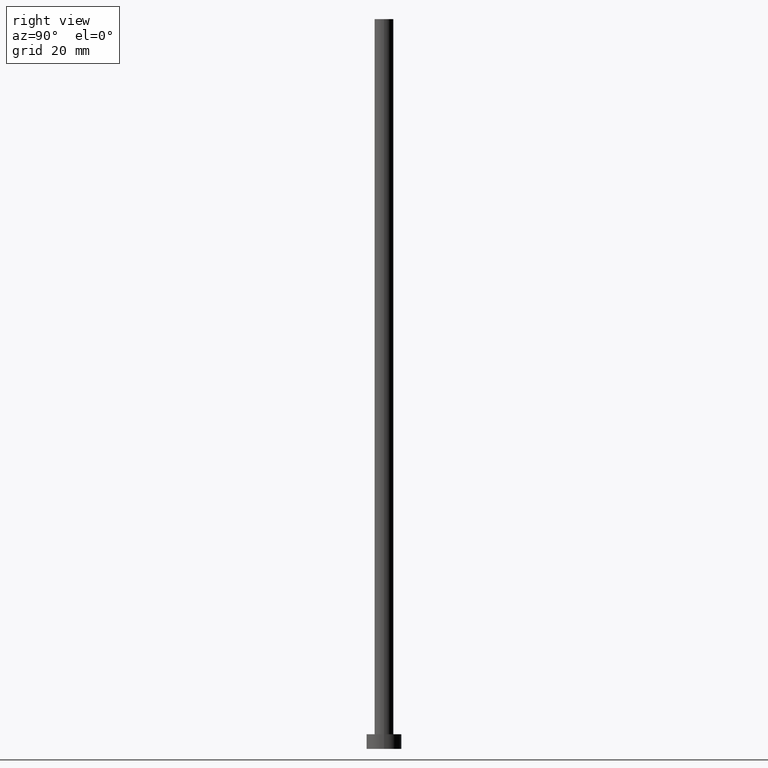
[diagram: clean part render]
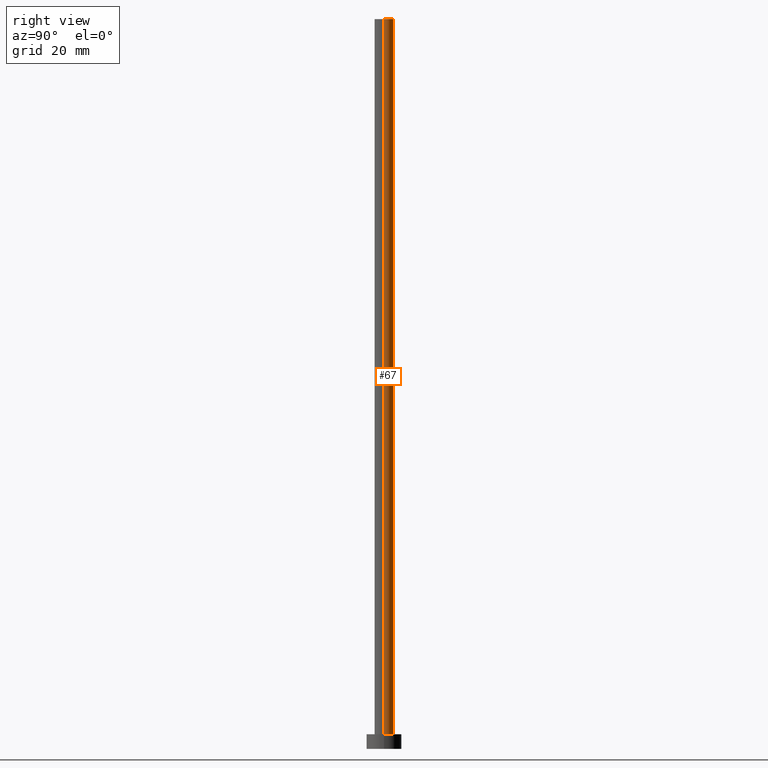
[diagram: same view with one face highlighted and labeled with its STEP entity id]
A machine part, right view. The second image highlights one B-rep face of the part: STEP entity #67.
In plain terms, the highlighted cylindrical surface (edge-blend (fillet) strip) has radius 3.25 mm, axis along (-0, -0, -1).
Its self-contained STEP definition (entity closure, byte-faithful):
#4 = DIRECTION ( 'NONE',  ( 1.000000000000000000, 0.000000000000000000, 0.000000000000000000 ) ) ;
#6 = DIRECTION ( 'NONE',  ( -1.000000000000000000, 0.000000000000000000, 0.000000000000000000 ) ) ;
#8 = DIRECTION ( 'NONE',  ( -0.000000000000000000, -0.000000000000000000, -1.000000000000000000 ) ) ;
#12 = VERTEX_POINT ( 'NONE', #100 ) ;
#31 = CARTESIAN_POINT ( 'NONE',  ( -3.250000000000000444, 0.000000000000000000, 250.0000000000000000 ) ) ;
#37 = CIRCLE ( 'NONE', #183, 3.250000000000000444 ) ;
#41 = ORIENTED_EDGE ( 'NONE', *, *, #156, .T. ) ;
#49 = AXIS2_PLACEMENT_3D ( 'NONE', #127, #64, #6 ) ;
#50 = VERTEX_POINT ( 'NONE', #55 ) ;
#55 = CARTESIAN_POINT ( 'NONE',  ( -3.250000000000000444, 0.000000000000000000, 5.000000000000000000 ) ) ;
#64 = DIRECTION ( 'NONE',  ( -0.000000000000000000, -0.000000000000000000, -1.000000000000000000 ) ) ;
#67 = ADVANCED_FACE ( 'NONE', ( #131 ), #250, .T. ) ;
#81 = VERTEX_POINT ( 'NONE', #31 ) ;
#85 = CARTESIAN_POINT ( 'NONE',  ( 3.250000000000000444, 3.980102097228898231E-16, 5.000000000000000000 ) ) ;
#88 = VECTOR ( 'NONE', #8, 1000.000000000000000 ) ;
#89 = ORIENTED_EDGE ( 'NONE', *, *, #224, .F. ) ;
#90 = EDGE_CURVE ( 'NONE', #81, #50, #219, .T. ) ;
#93 = AXIS2_PLACEMENT_3D ( 'NONE', #139, #227, #209 ) ;
#100 = CARTESIAN_POINT ( 'NONE',  ( 3.250000000000000444, 3.980102097228898231E-16, 250.0000000000000000 ) ) ;
#108 = ORIENTED_EDGE ( 'NONE', *, *, #244, .T. ) ;
#114 = CARTESIAN_POINT ( 'NONE',  ( -3.250000000000000444, 0.000000000000000000, 250.0000000000000000 ) ) ;
#115 = DIRECTION ( 'NONE',  ( -0.000000000000000000, -0.000000000000000000, -1.000000000000000000 ) ) ;
#127 = CARTESIAN_POINT ( 'NONE',  ( 0.000000000000000000, 0.000000000000000000, 250.0000000000000000 ) ) ;
#131 = FACE_OUTER_BOUND ( 'NONE', #255, .T. ) ;
#139 = CARTESIAN_POINT ( 'NONE',  ( 0.000000000000000000, 0.000000000000000000, 250.0000000000000000 ) ) ;
#146 = VERTEX_POINT ( 'NONE', #85 ) ;
#156 = EDGE_CURVE ( 'NONE', #146, #50, #37, .T. ) ;
#171 = CARTESIAN_POINT ( 'NONE',  ( 3.250000000000000444, 3.980102097228898231E-16, 250.0000000000000000 ) ) ;
#183 = AXIS2_PLACEMENT_3D ( 'NONE', #192, #247, #4 ) ;
#192 = CARTESIAN_POINT ( 'NONE',  ( 0.000000000000000000, 0.000000000000000000, 5.000000000000000000 ) ) ;
#209 = DIRECTION ( 'NONE',  ( 1.000000000000000000, 0.000000000000000000, 0.000000000000000000 ) ) ;
#212 = CIRCLE ( 'NONE', #93, 3.250000000000000444 ) ;
#219 = LINE ( 'NONE', #114, #222 ) ;
#222 = VECTOR ( 'NONE', #115, 1000.000000000000000 ) ;
#224 = EDGE_CURVE ( 'NONE', #12, #81, #212, .T. ) ;
#227 = DIRECTION ( 'NONE',  ( 0.000000000000000000, 0.000000000000000000, 1.000000000000000000 ) ) ;
#231 = ORIENTED_EDGE ( 'NONE', *, *, #90, .F. ) ;
#238 = LINE ( 'NONE', #171, #88 ) ;
#244 = EDGE_CURVE ( 'NONE', #12, #146, #238, .T. ) ;
#247 = DIRECTION ( 'NONE',  ( 0.000000000000000000, 0.000000000000000000, 1.000000000000000000 ) ) ;
#250 = CYLINDRICAL_SURFACE ( 'NONE', #49, 3.250000000000000444 ) ;
#255 = EDGE_LOOP ( 'NONE', ( #89, #108, #41, #231 ) ) ;